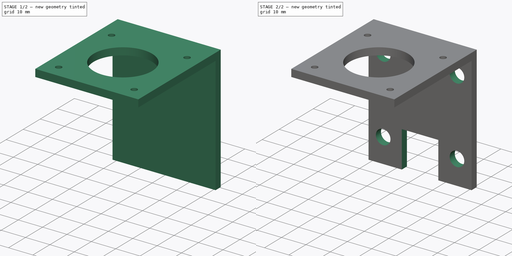
[diagram: build sequence overview — one tinted view per stage of 2, left to right]
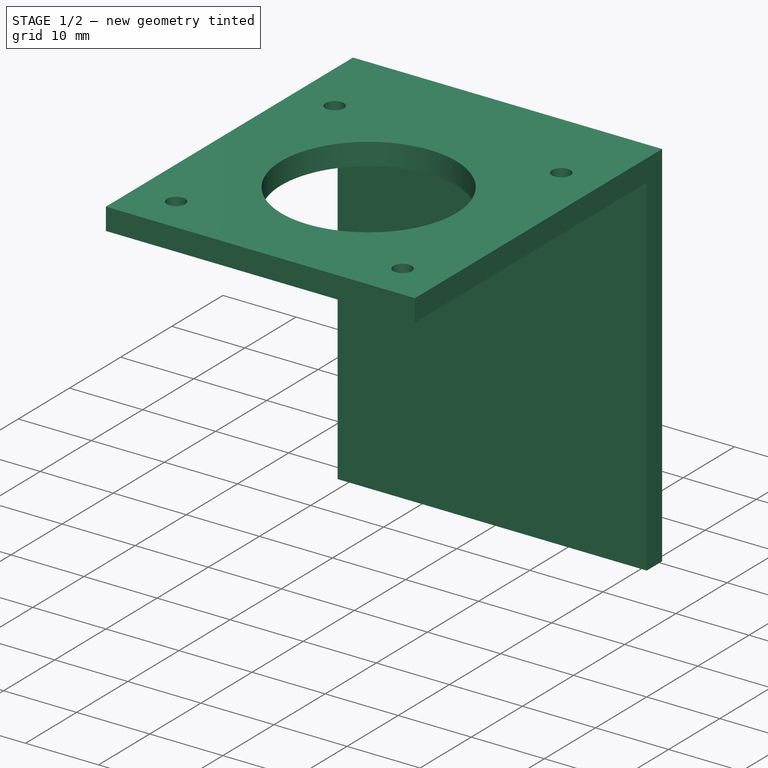
[diagram: stage 1 of 2 — iso view after this stage's code; geometry added in this stage tinted green]
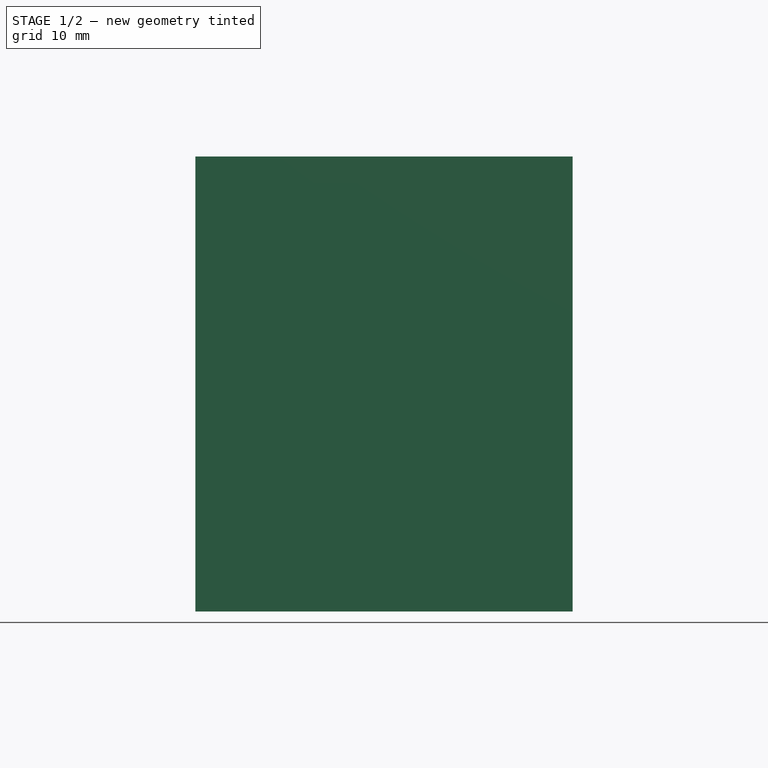
[diagram: stage 1 of 2 — front view after this stage's code; geometry added in this stage tinted green]
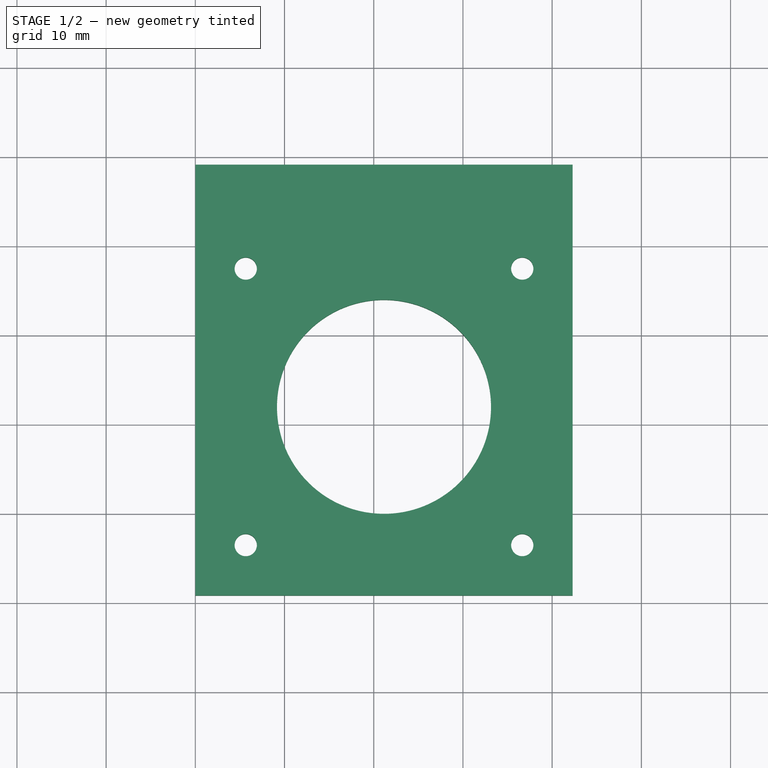
[diagram: stage 1 of 2 — top view after this stage's code; geometry added in this stage tinted green]
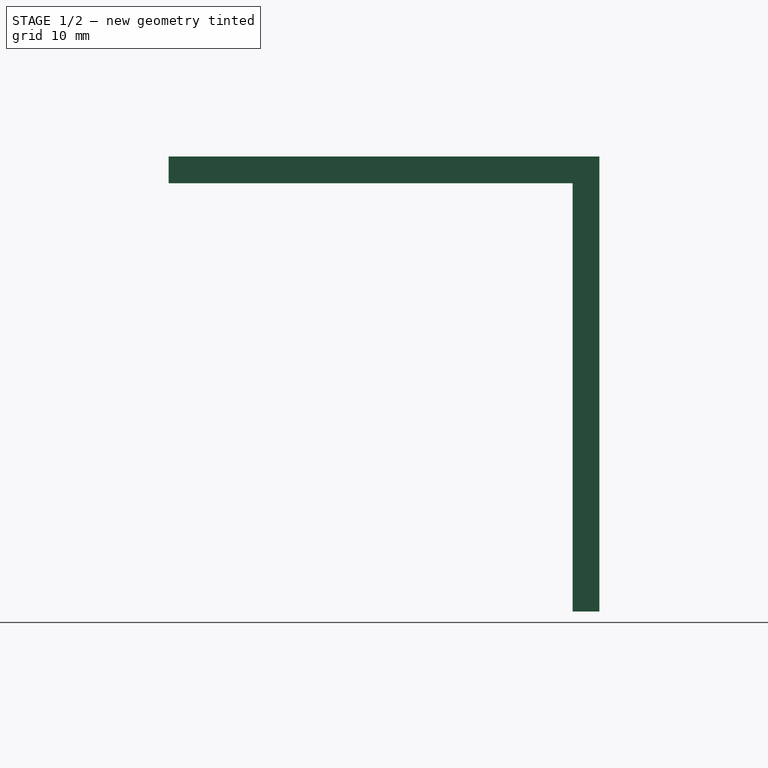
[diagram: stage 1 of 2 — right view after this stage's code; geometry added in this stage tinted green]
FCSTD DOCUMENT  (FreeCAD 0.16R6707 (Git))
Label: support moteur
License: All rights reserved
LicenseURL: http://en.wikipedia.org/wiki/All_rights_reserved
objects: Sketcher::SketchObject×3, PartDesign::Pad×2, PartDesign::Pocket×1
note: 9 computed .brp shape members not serialized (recipe doc carries the construction recipe); baked Part::Feature solids carry a one-line shape summary decoded from their .brp

FEATURE [Sketcher::SketchObject] Sketch
  sketch-geometry (18):
    g0: LineSegment StartX=0 StartY=0 StartZ=0 EndX=42.3 EndY=0 EndZ=0
    g1: LineSegment StartX=42.3 StartY=0 StartZ=0 EndX=42.3 EndY=42.3 EndZ=0
    g2: LineSegment StartX=0 StartY=42.3 StartZ=0 EndX=0 EndY=0 EndZ=0
    g3: GeomPoint [constr] X=0 Y=48.3 Z=0
    g4: GeomPoint [constr] X=42.3 Y=48.3 Z=0
    g5: LineSegment StartX=0 StartY=42.3 StartZ=0 EndX=0 EndY=48.3 EndZ=0
    g6: LineSegment StartX=0 StartY=48.3 StartZ=0 EndX=42.3 EndY=48.3 EndZ=0
    g7: LineSegment StartX=42.3 StartY=48.3 StartZ=0 EndX=42.3 EndY=42.3 EndZ=0
    g8: GeomPoint [constr] X=5.65 Y=5.65 Z=0
    g9: GeomPoint [constr] X=5.65 Y=36.65 Z=0
    g10: GeomPoint [constr] X=36.65 Y=36.65 Z=0
    g11: GeomPoint [constr] X=36.65 Y=5.65 Z=0
    g12: Circle CenterX=5.65 CenterY=36.65 CenterZ=0 NormalX=0 NormalY=0 NormalZ=1 Radius=1.25
    g13: Circle CenterX=36.65 CenterY=36.65 CenterZ=0 NormalX=0 NormalY=0 NormalZ=1 Radius=1.25
    g14: Circle CenterX=5.65 CenterY=5.65 CenterZ=0 NormalX=0 NormalY=0 NormalZ=1 Radius=1.25
    g15: Circle CenterX=36.65 CenterY=5.65 CenterZ=0 NormalX=0 NormalY=0 NormalZ=1 Radius=1.25
    g16: GeomPoint [constr] X=21.15 Y=21.15 Z=0
    g17: Circle CenterX=21.15 CenterY=21.15 CenterZ=0 NormalX=0 NormalY=0 NormalZ=1 Radius=12
  constraints (39):
    c: Coincident(g0,g1)
    c: Coincident(g2,g0)
    c: Horizontal(g0)
    c: Vertical(g1)
    c: Vertical(g2)
    c: Coincident(g0,g-1)
    c: Distance(g2) = 42.3
    c: Distance(g0) = 42.3
    c: Distance(g1) = 42.3
    c: PointOnObject(g3,g-2)
    c: Distance(g3,g2) = 6
    c: DistanceX(g1,g4) = 0
    c: DistanceY(g1,g4) = 6
    c: Coincident(g2,g5)
    c: Coincident(g5,g3)
    c: Coincident(g5,g6)
    c: Coincident(g6,g4)
    c: Coincident(g6,g7)
    c: Coincident(g7,g1)
    c: DistanceX(g8,g9) = 0
    c: DistanceY(g10,g9) = 0
    c: DistanceY(g8,g11) = 0
    c: DistanceX(g8) = 5.65
    c: DistanceY(g8) = 5.65
    c: DistanceX(g10,g11) = 0
    c: DistanceY(g8,g9) = 31
    c: DistanceX(g9,g10) = 31
    c: Coincident(g12,g9)
    c: Coincident(g13,g10)
    c: Coincident(g14,g8)
    c: Coincident(g15,g11)
    c: Radius(g12) = 1.25
    c: Radius(g13) = 1.25
    c: Radius(g15) = 1.25
    c: Radius(g14) = 1.25
    c: DistanceY(g16) = 21.15
    c: DistanceX(g16) = 21.15
    c: Coincident(g17,g16)
    c: Radius(g17) = 12
FEATURE [PartDesign::Pad] Pad
  Length = 3
  Length2 = 100
  Sketch = -> Sketch
  Type = 0
FEATURE [Sketcher::SketchObject] Sketch001
  Placement = pos=(0,0,0) rot=(1,0,0;3.14159rad)
  Support = -> Pad [Face11]
  sketch-geometry (5):
    g0: GeomPoint [constr] X=0 Y=-45.3 Z=0
    g1: LineSegment StartX=0 StartY=-45.3 StartZ=0 EndX=42.3 EndY=-45.3 EndZ=0
    g2: LineSegment StartX=42.3 StartY=-45.3 StartZ=0 EndX=42.3 EndY=-48.3 EndZ=0
    g3: LineSegment StartX=42.3 StartY=-48.3 StartZ=0 EndX=0 EndY=-48.3 EndZ=0
    g4: LineSegment StartX=0 StartY=-48.3 StartZ=0 EndX=0 EndY=-45.3 EndZ=0
  constraints (13):
    c: PointOnObject(g0,g-2)
    c: DistanceY(g0) = -45.3
    c: Coincident(g1,g2)
    c: Coincident(g2,g3)
    c: Coincident(g3,g4)
    c: Coincident(g4,g1)
    c: Horizontal(g1)
    c: Horizontal(g3)
    c: Vertical(g2)
    c: Vertical(g4)
    c: Coincident(g1,g0)
    c: Distance(g1) = 42.3
    c: Distance(g2) = 3
FEATURE [PartDesign::Pad] Pad001
  Length = 48
  Length2 = 100
  Sketch = -> Sketch001
  Type = 0
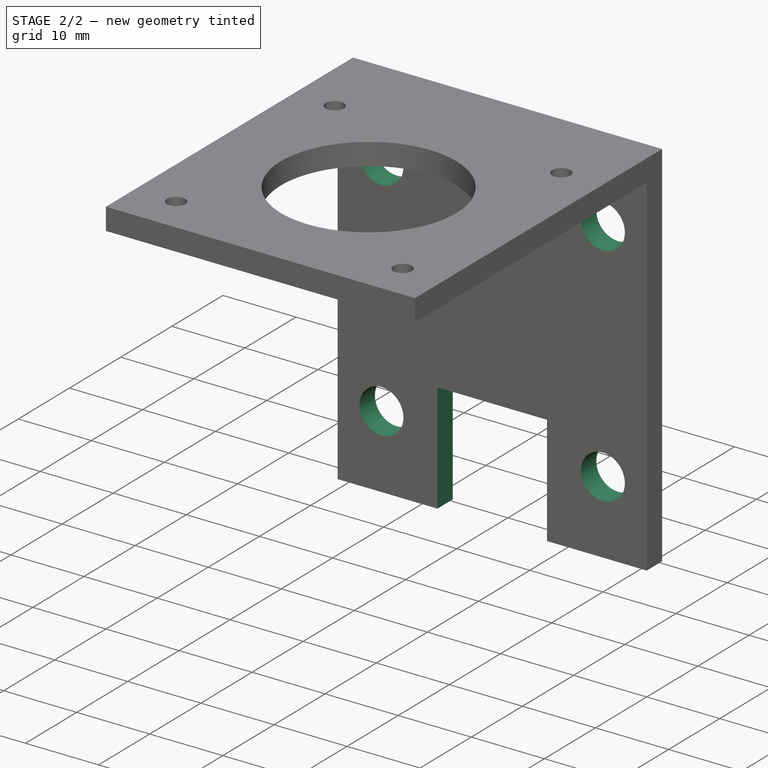
[diagram: stage 2 of 2 — iso view after this stage's code; geometry added in this stage tinted green]
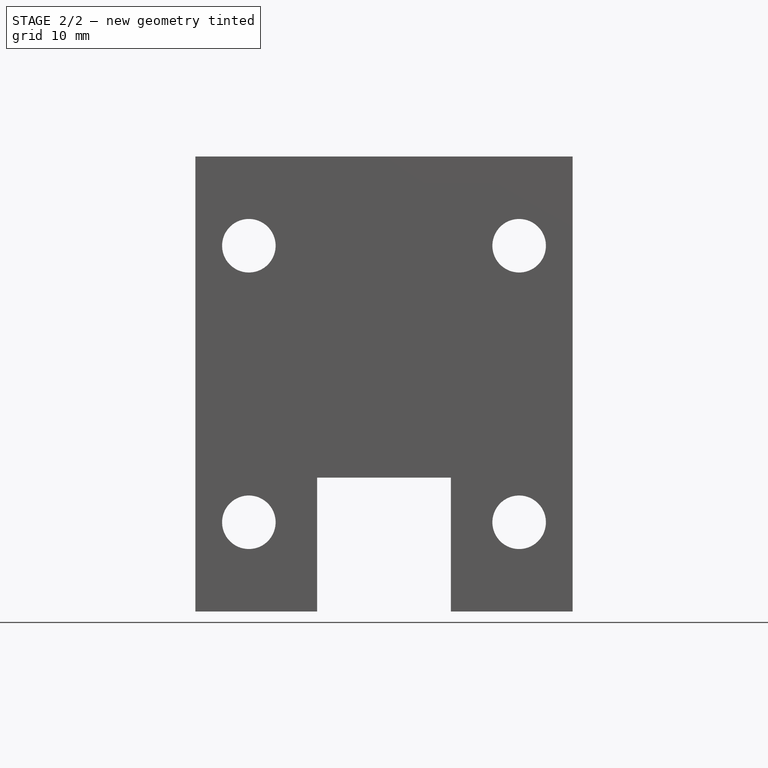
[diagram: stage 2 of 2 — front view after this stage's code; geometry added in this stage tinted green]
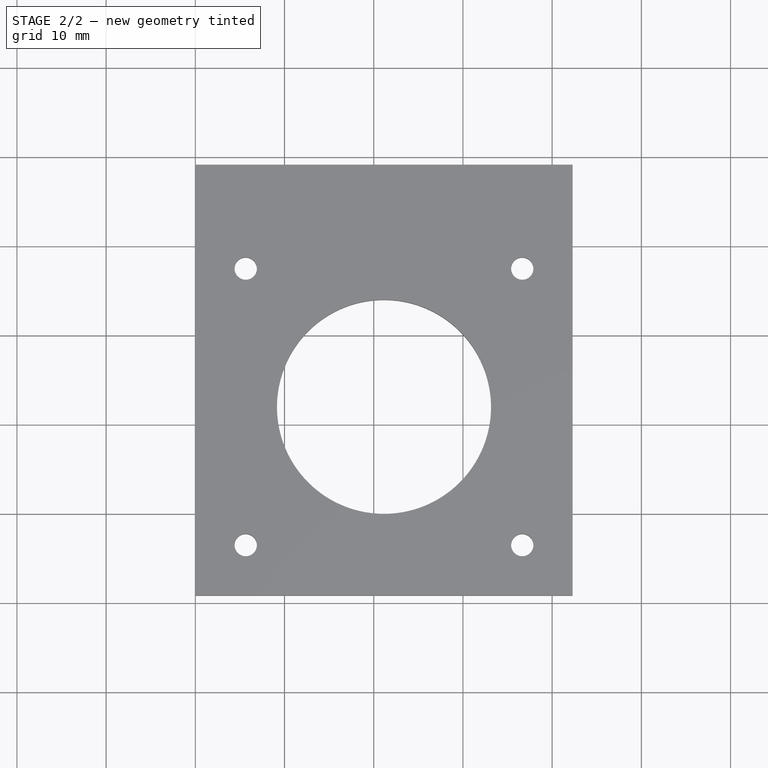
[diagram: stage 2 of 2 — top view after this stage's code; geometry added in this stage tinted green]
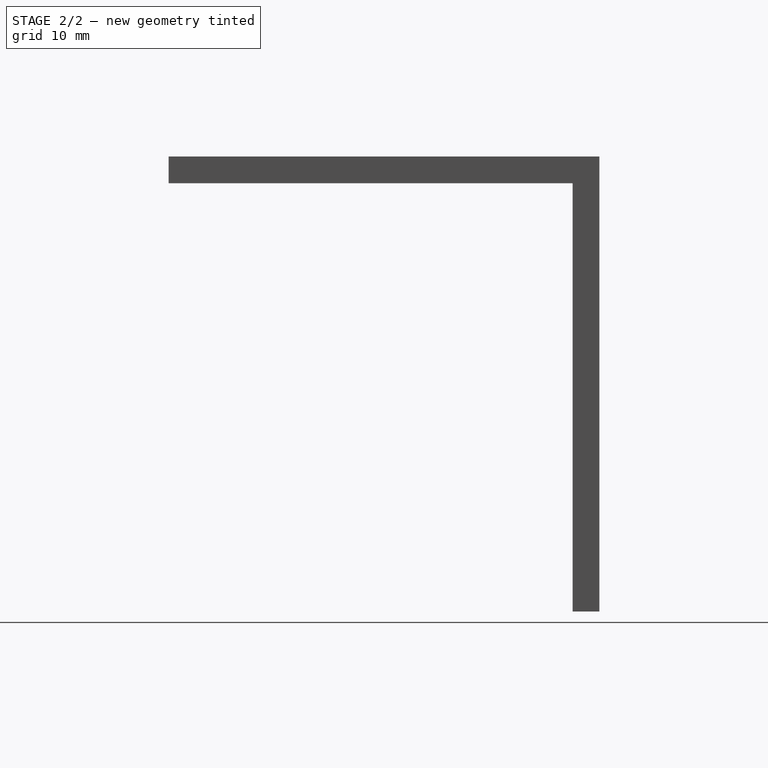
[diagram: stage 2 of 2 — right view after this stage's code; geometry added in this stage tinted green]
FEATURE [Sketcher::SketchObject] Sketch002
  Placement = pos=(0,48.3,0) rot=(0,0.707107,0.707107;3.14159rad)
  Support = -> Pad001 [Face18]
  sketch-geometry (14):
    g0: GeomPoint [constr] X=-6 Y=-7 Z=0
    g1: GeomPoint [constr] X=-36.3 Y=-7 Z=0
    g2: GeomPoint [constr] X=-36.3 Y=-38 Z=0
    g3: GeomPoint [constr] X=-6 Y=-38 Z=0
    g4: Circle CenterX=-36.3 CenterY=-7 CenterZ=0 NormalX=0 NormalY=0 NormalZ=1 Radius=3
    g5: Circle CenterX=-6 CenterY=-7 CenterZ=0 NormalX=0 NormalY=0 NormalZ=1 Radius=3
    g6: Circle CenterX=-36.3 CenterY=-38 CenterZ=0 NormalX=0 NormalY=0 NormalZ=1 Radius=3
    g7: Circle CenterX=-6 CenterY=-38 CenterZ=0 NormalX=0 NormalY=0 NormalZ=1 Radius=3
    g8: GeomPoint [constr] X=-21.15 Y=-48 Z=0
    g9: GeomPoint [constr] X=-28.65 Y=-48 Z=0
    g10: LineSegment StartX=-28.65 StartY=-48 StartZ=0 EndX=-13.65 EndY=-48 EndZ=0
    g11: LineSegment StartX=-13.65 StartY=-48 StartZ=0 EndX=-13.65 EndY=-33 EndZ=0
    g12: LineSegment StartX=-13.65 StartY=-33 StartZ=0 EndX=-28.65 EndY=-33 EndZ=0
    g13: LineSegment StartX=-28.65 StartY=-33 StartZ=0 EndX=-28.65 EndY=-48 EndZ=0
  constraints (31):
    c: DistanceY(g0) = -7
    c: DistanceY(g1) = -7
    c: DistanceX(g0) = -6
    c: DistanceX(g1,g0) = 30.3
    c: DistanceX(g1,g2) = 0
    c: DistanceY(g2,g1) = 31
    c: DistanceX(g3,g0) = 0
    c: DistanceY(g3,g0) = 31
    c: Coincident(g4,g1)
    c: Coincident(g5,g0)
    c: Coincident(g6,g2)
    c: Coincident(g7,g3)
    c: Radius(g5) = 3
    c: Radius(g4) = 3
    c: Radius(g6) = 3
    c: Radius(g7) = 3
    c: DistanceY(g8) = -48
    c: DistanceX(g8) = -21.15
    c: DistanceX(g9,g8) = 7.5
    c: DistanceY(g8,g9) = 0
    c: Coincident(g10,g11)
    c: Coincident(g11,g12)
    c: Coincident(g12,g13)
    c: Coincident(g13,g10)
    c: Horizontal(g10)
    c: Horizontal(g12)
    c: Vertical(g11)
    c: Vertical(g13)
    c: Coincident(g10,g9)
    c: Distance(g12) = 15
    c: Distance(g13) = 15
FEATURE [PartDesign::Pocket] Pocket
  Length = 5
  Sketch = -> Sketch002
  Type = 1
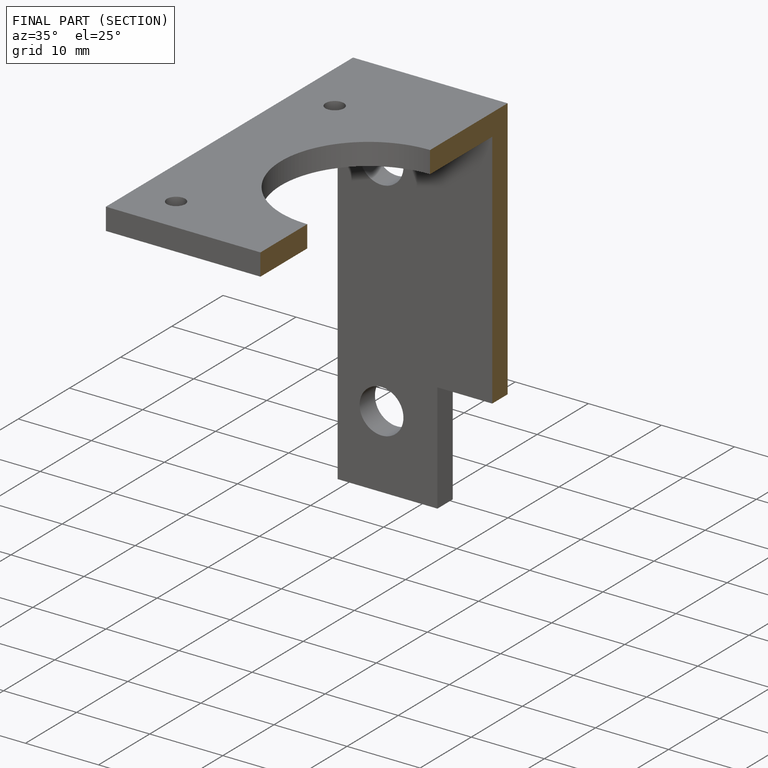
[diagram: finished part — half-section view (interior)]
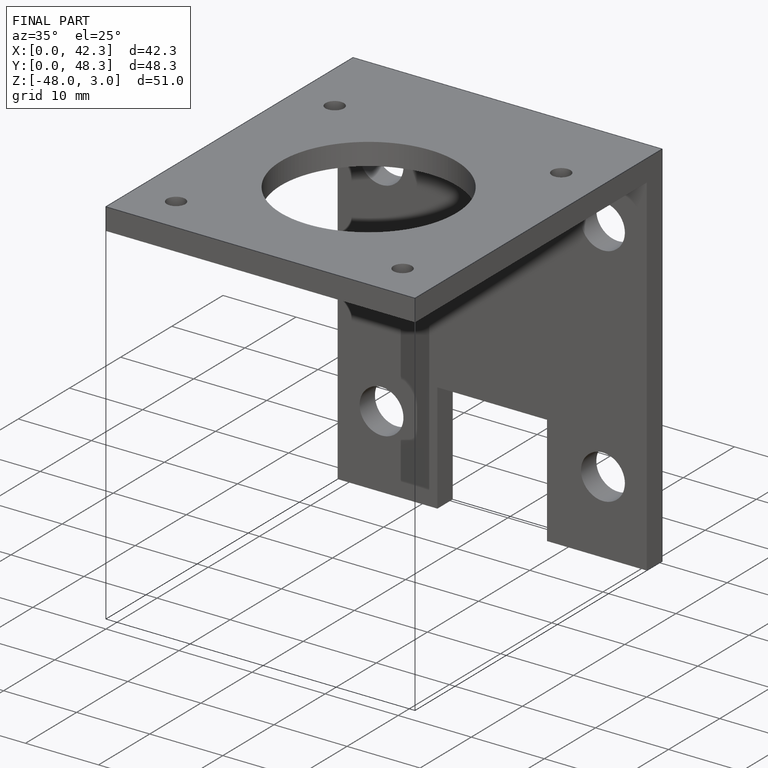
[diagram: finished part — iso view with bounding-box wireframe]
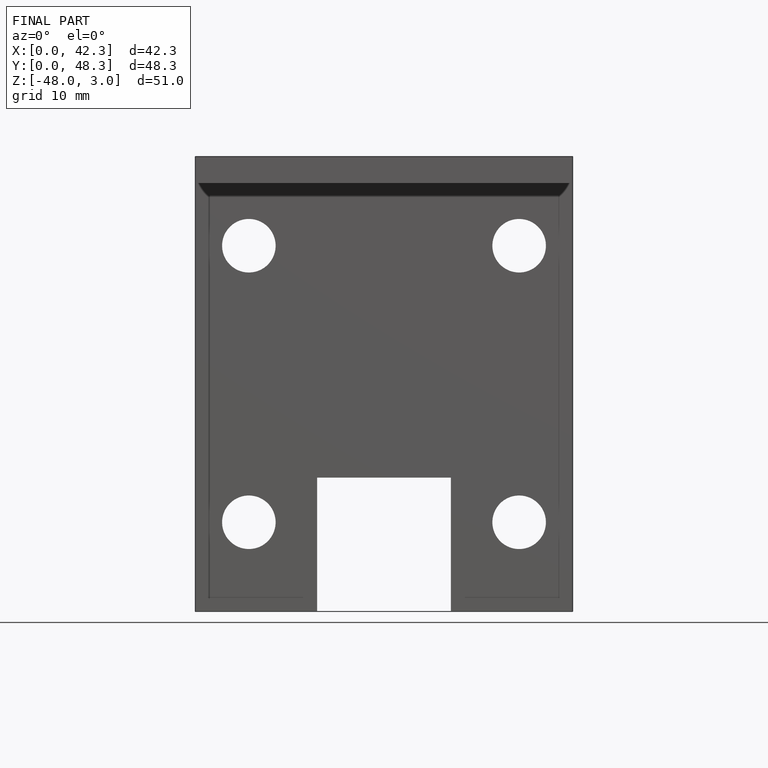
[diagram: finished part — front view with bounding-box wireframe]
